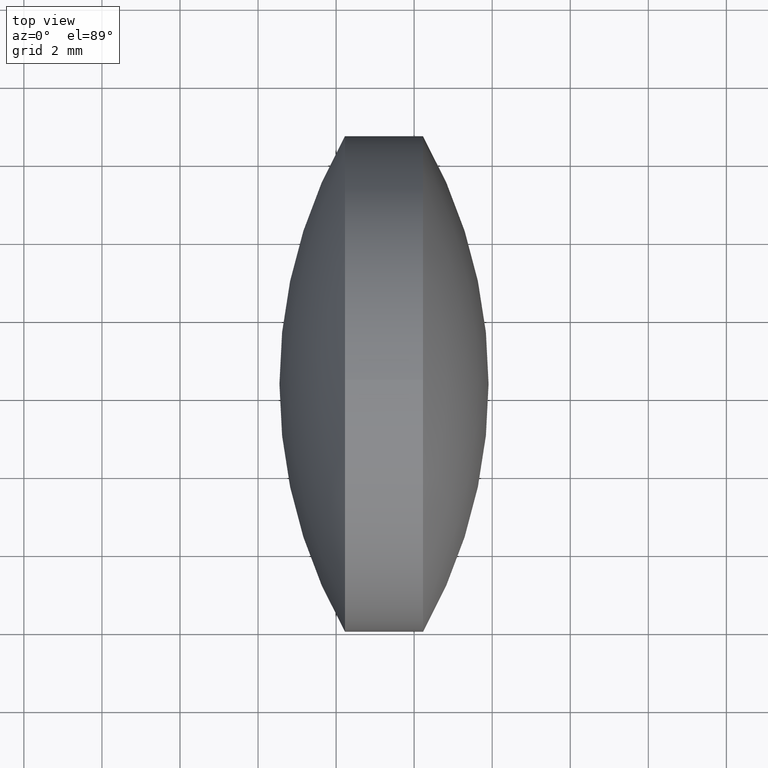
[diagram: clean part render]
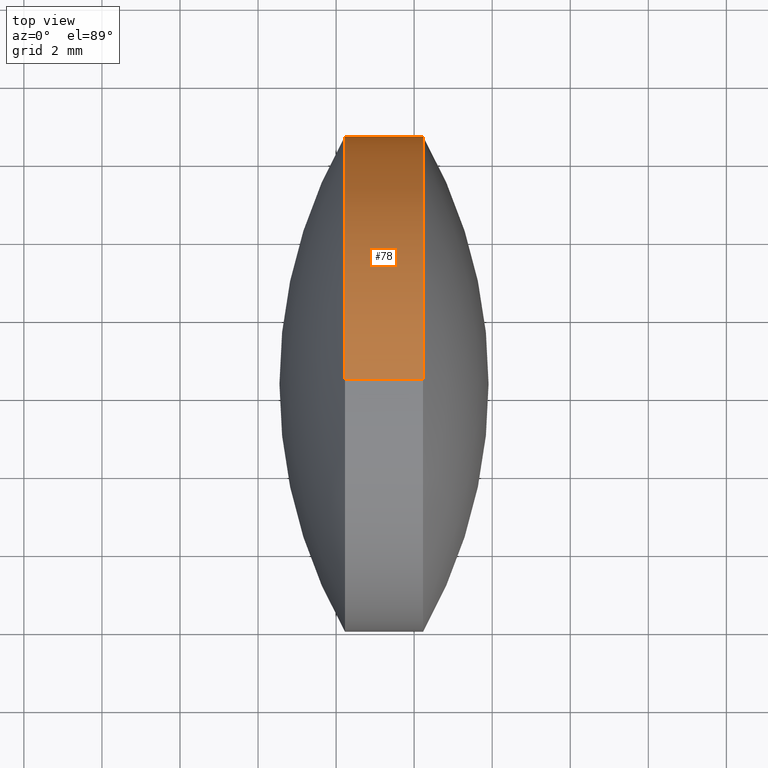
[diagram: same view with one face highlighted and labeled with its STEP entity id]
A machine part, top view. The second image highlights one B-rep face of the part: STEP entity #78.
In plain terms, the highlighted cylindrical surface (partial cylindrical patch) has radius 6.3498 mm, axis along (-1, -0, -0).
Its self-contained STEP definition (entity closure, byte-faithful):
#6 = AXIS2_PLACEMENT_3D ( 'NONE', #250, #91, #310 ) ;
#10 = VERTEX_POINT ( 'NONE', #329 ) ;
#18 = CYLINDRICAL_SURFACE ( 'NONE', #79, 6.349782293178511100 ) ;
#25 = VERTEX_POINT ( 'NONE', #196 ) ;
#27 = ORIENTED_EDGE ( 'NONE', *, *, #343, .T. ) ;
#31 = DIRECTION ( 'NONE',  ( -1.000000000000000000, -0.0000000000000000000, -0.0000000000000000000 ) ) ;
#37 = EDGE_CURVE ( 'NONE', #163, #47, #63, .T. ) ;
#43 = DIRECTION ( 'NONE',  ( -1.000000000000000000, -0.0000000000000000000, -0.0000000000000000000 ) ) ;
#46 = DIRECTION ( 'NONE',  ( -1.000000000000000000, -0.0000000000000000000, -0.0000000000000000000 ) ) ;
#47 = VERTEX_POINT ( 'NONE', #277 ) ;
#62 = DIRECTION ( 'NONE',  ( 0.0000000000000000000, 0.0000000000000000000, 1.000000000000000000 ) ) ;
#63 = CIRCLE ( 'NONE', #6, 6.349782293178511100 ) ;
#65 = LINE ( 'NONE', #255, #189 ) ;
#74 = DIRECTION ( 'NONE',  ( 0.0000000000000000000, 0.0000000000000000000, 1.000000000000000000 ) ) ;
#78 = ADVANCED_FACE ( 'NONE', ( #340 ), #18, .T. ) ;
#79 = AXIS2_PLACEMENT_3D ( 'NONE', #326, #31, #62 ) ;
#80 = ORIENTED_EDGE ( 'NONE', *, *, #252, .F. ) ;
#87 = EDGE_CURVE ( 'NONE', #10, #160, #304, .T. ) ;
#91 = DIRECTION ( 'NONE',  ( -1.000000000000000000, -0.0000000000000000000, -0.0000000000000000000 ) ) ;
#95 = ORIENTED_EDGE ( 'NONE', *, *, #87, .T. ) ;
#96 = CARTESIAN_POINT ( 'NONE',  ( 44.22761479768103500, 24.30722312108537200, 0.0000000000000000000 ) ) ;
#98 = DIRECTION ( 'NONE',  ( -1.000000000000000000, -0.0000000000000000000, -0.0000000000000000000 ) ) ;
#135 = AXIS2_PLACEMENT_3D ( 'NONE', #96, #98, #197 ) ;
#143 = ORIENTED_EDGE ( 'NONE', *, *, #262, .F. ) ;
#149 = CARTESIAN_POINT ( 'NONE',  ( 44.22761479768103500, 24.30722312108537200, -6.349782293178511100 ) ) ;
#160 = VERTEX_POINT ( 'NONE', #149 ) ;
#163 = VERTEX_POINT ( 'NONE', #334 ) ;
#176 = DIRECTION ( 'NONE',  ( -1.000000000000000000, -0.0000000000000000000, -0.0000000000000000000 ) ) ;
#178 = CARTESIAN_POINT ( 'NONE',  ( 42.22761479768103500, 24.30722312108537200, 0.0000000000000000000 ) ) ;
#181 = ORIENTED_EDGE ( 'NONE', *, *, #321, .T. ) ;
#182 = CARTESIAN_POINT ( 'NONE',  ( 39.65134120086310100, 24.30722312108537200, -6.349782293178511100 ) ) ;
#186 = LINE ( 'NONE', #182, #209 ) ;
#189 = VECTOR ( 'NONE', #43, 1000.000000000000000 ) ;
#196 = CARTESIAN_POINT ( 'NONE',  ( 42.22761479768103500, 24.30722312108537200, -6.349782293178511100 ) ) ;
#197 = DIRECTION ( 'NONE',  ( 0.0000000000000000000, 0.0000000000000000000, 1.000000000000000000 ) ) ;
#209 = VECTOR ( 'NONE', #319, 1000.000000000000000 ) ;
#210 = VERTEX_POINT ( 'NONE', #336 ) ;
#227 = DIRECTION ( 'NONE',  ( 0.0000000000000000000, 0.0000000000000000000, 1.000000000000000000 ) ) ;
#250 = CARTESIAN_POINT ( 'NONE',  ( 42.22761479768103500, 24.30722312108537200, 0.0000000000000000000 ) ) ;
#252 = EDGE_CURVE ( 'NONE', #210, #163, #65, .T. ) ;
#255 = CARTESIAN_POINT ( 'NONE',  ( 39.65134120086310100, 24.30722312108537200, 6.349782293178511100 ) ) ;
#260 = CARTESIAN_POINT ( 'NONE',  ( 44.22761479768103500, 24.30722312108537200, 0.0000000000000000000 ) ) ;
#262 = EDGE_CURVE ( 'NONE', #47, #25, #345, .T. ) ;
#277 = CARTESIAN_POINT ( 'NONE',  ( 42.22761479768103500, 30.65700541426388200, 0.0000000000000000000 ) ) ;
#293 = ORIENTED_EDGE ( 'NONE', *, *, #37, .F. ) ;
#295 = AXIS2_PLACEMENT_3D ( 'NONE', #260, #46, #74 ) ;
#296 = CIRCLE ( 'NONE', #295, 6.349782293178511100 ) ;
#297 = EDGE_LOOP ( 'NONE', ( #95, #27, #143, #293, #80, #181 ) ) ;
#304 = CIRCLE ( 'NONE', #135, 6.349782293178511100 ) ;
#306 = AXIS2_PLACEMENT_3D ( 'NONE', #178, #176, #227 ) ;
#310 = DIRECTION ( 'NONE',  ( 0.0000000000000000000, 0.0000000000000000000, 1.000000000000000000 ) ) ;
#319 = DIRECTION ( 'NONE',  ( -1.000000000000000000, -0.0000000000000000000, -0.0000000000000000000 ) ) ;
#321 = EDGE_CURVE ( 'NONE', #210, #10, #296, .T. ) ;
#326 = CARTESIAN_POINT ( 'NONE',  ( 39.65134120086310100, 24.30722312108537200, 0.0000000000000000000 ) ) ;
#329 = CARTESIAN_POINT ( 'NONE',  ( 44.22761479768103500, 30.65700541426388900, 7.776240560623603200E-016 ) ) ;
#334 = CARTESIAN_POINT ( 'NONE',  ( 42.22761479768103500, 24.30722312108537200, 6.349782293178511100 ) ) ;
#336 = CARTESIAN_POINT ( 'NONE',  ( 44.22761479768103500, 24.30722312108537200, 6.349782293178511100 ) ) ;
#340 = FACE_OUTER_BOUND ( 'NONE', #297, .T. ) ;
#343 = EDGE_CURVE ( 'NONE', #160, #25, #186, .T. ) ;
#345 = CIRCLE ( 'NONE', #306, 6.349782293178511100 ) ;